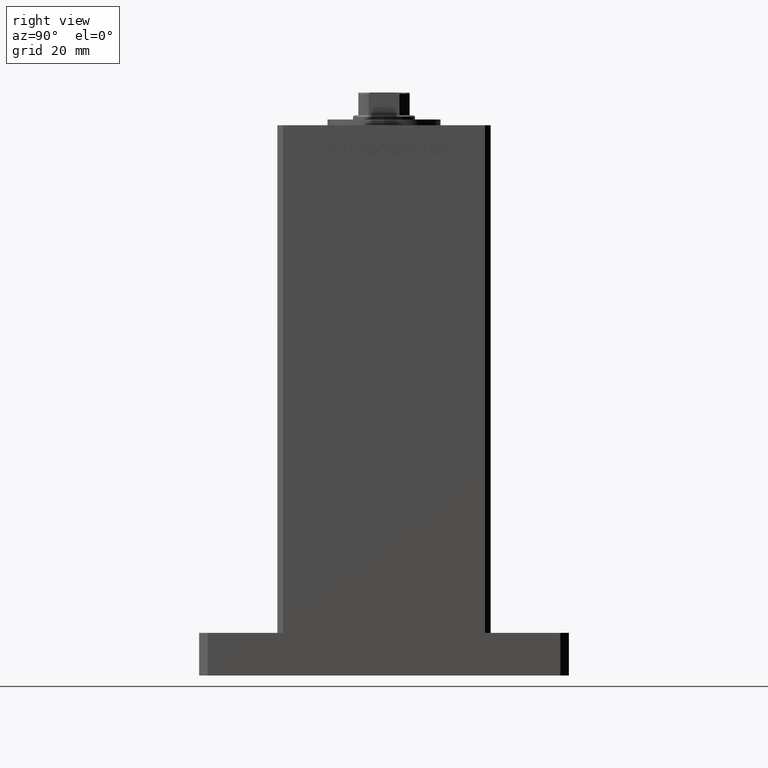
[diagram: clean part render]
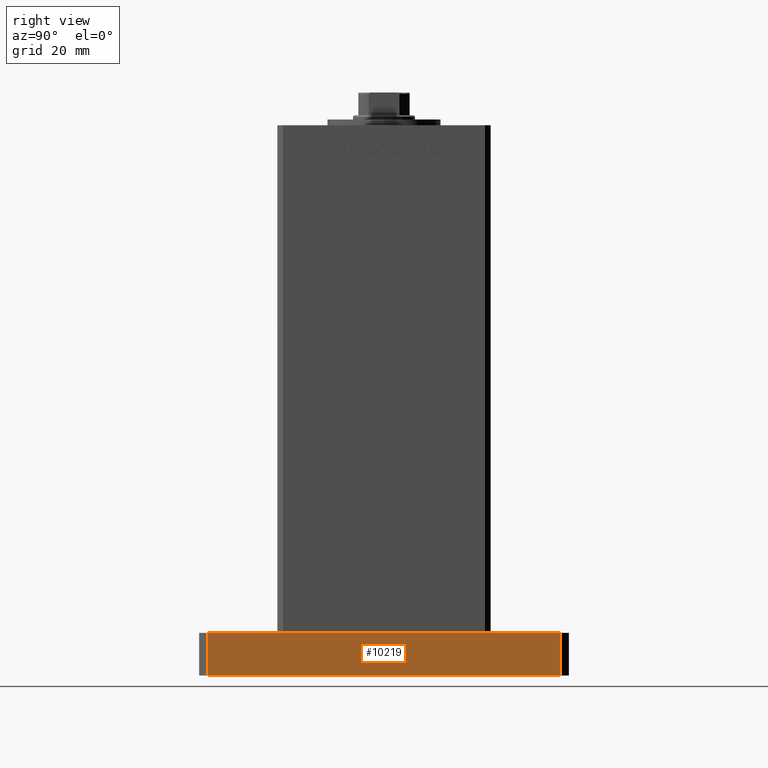
[diagram: same view with one face highlighted and labeled with its STEP entity id]
A machine part, right view. The second image highlights one B-rep face of the part: STEP entity #10219.
In plain terms, the highlighted planar face has unit normal (-1, 0, 0).
Its self-contained STEP definition (entity closure, byte-faithful):
#2041 = CARTESIAN_POINT ( 'NONE',  ( 42.50000000000000000, -61.99999999999988631, 15.00000000000000000 ) ) ;
#5447 = EDGE_CURVE ( 'NONE', #33299, #48316, #26040, .T. ) ;
#7681 = AXIS2_PLACEMENT_3D ( 'NONE', #2041, #23311, #39235 ) ;
#7884 = CARTESIAN_POINT ( 'NONE',  ( 42.50000000000000000, -61.99999999999988631, 0.000000000000000000 ) ) ;
#10219 = ADVANCED_FACE ( 'NONE', ( #27614 ), #47064, .F. ) ;
#10320 = LINE ( 'NONE', #34862, #13329 ) ;
#12457 = LINE ( 'NONE', #7884, #38464 ) ;
#13329 = VECTOR ( 'NONE', #51317, 1000.000000000000000 ) ;
#13925 = DIRECTION ( 'NONE',  ( -0.000000000000000000, -0.000000000000000000, -1.000000000000000000 ) ) ;
#18232 = LINE ( 'NONE', #18486, #46188 ) ;
#18486 = CARTESIAN_POINT ( 'NONE',  ( 42.50000000000000000, -61.99999999999988631, 15.00000000000000000 ) ) ;
#20532 = DIRECTION ( 'NONE',  ( 0.000000000000000000, 1.000000000000000000, 0.000000000000000000 ) ) ;
#20900 = CARTESIAN_POINT ( 'NONE',  ( 42.50000000000000000, -61.99999999999988631, 0.000000000000000000 ) ) ;
#23311 = DIRECTION ( 'NONE',  ( -1.000000000000000000, 0.000000000000000000, 0.000000000000000000 ) ) ;
#26040 = LINE ( 'NONE', #42487, #42812 ) ;
#27614 = FACE_OUTER_BOUND ( 'NONE', #52931, .T. ) ;
#29108 = VERTEX_POINT ( 'NONE', #20900 ) ;
#29793 = ORIENTED_EDGE ( 'NONE', *, *, #32294, .F. ) ;
#29814 = DIRECTION ( 'NONE',  ( -0.000000000000000000, -0.000000000000000000, -1.000000000000000000 ) ) ;
#32294 = EDGE_CURVE ( 'NONE', #50445, #33299, #10320, .T. ) ;
#33299 = VERTEX_POINT ( 'NONE', #38481 ) ;
#33741 = ORIENTED_EDGE ( 'NONE', *, *, #41714, .T. ) ;
#34302 = CARTESIAN_POINT ( 'NONE',  ( 42.50000000000000000, -61.99999999999988631, 15.00000000000000000 ) ) ;
#34862 = CARTESIAN_POINT ( 'NONE',  ( 42.50000000000000000, -61.99999999999988631, 15.00000000000000000 ) ) ;
#38464 = VECTOR ( 'NONE', #20532, 1000.000000000000000 ) ;
#38481 = CARTESIAN_POINT ( 'NONE',  ( 42.50000000000000000, 62.00000000000000711, 15.00000000000000000 ) ) ;
#39235 = DIRECTION ( 'NONE',  ( 0.000000000000000000, 0.000000000000000000, 1.000000000000000000 ) ) ;
#40975 = EDGE_CURVE ( 'NONE', #29108, #48316, #12457, .T. ) ;
#41714 = EDGE_CURVE ( 'NONE', #50445, #29108, #18232, .T. ) ;
#42455 = ORIENTED_EDGE ( 'NONE', *, *, #5447, .F. ) ;
#42487 = CARTESIAN_POINT ( 'NONE',  ( 42.50000000000000000, 62.00000000000000711, 15.00000000000000000 ) ) ;
#42812 = VECTOR ( 'NONE', #29814, 1000.000000000000000 ) ;
#44673 = CARTESIAN_POINT ( 'NONE',  ( 42.50000000000000000, 62.00000000000000711, 0.000000000000000000 ) ) ;
#46188 = VECTOR ( 'NONE', #13925, 1000.000000000000000 ) ;
#47064 = PLANE ( 'NONE',  #7681 ) ;
#48316 = VERTEX_POINT ( 'NONE', #44673 ) ;
#50445 = VERTEX_POINT ( 'NONE', #34302 ) ;
#51261 = ORIENTED_EDGE ( 'NONE', *, *, #40975, .T. ) ;
#51317 = DIRECTION ( 'NONE',  ( 0.000000000000000000, 1.000000000000000000, 0.000000000000000000 ) ) ;
#52931 = EDGE_LOOP ( 'NONE', ( #51261, #42455, #29793, #33741 ) ) ;